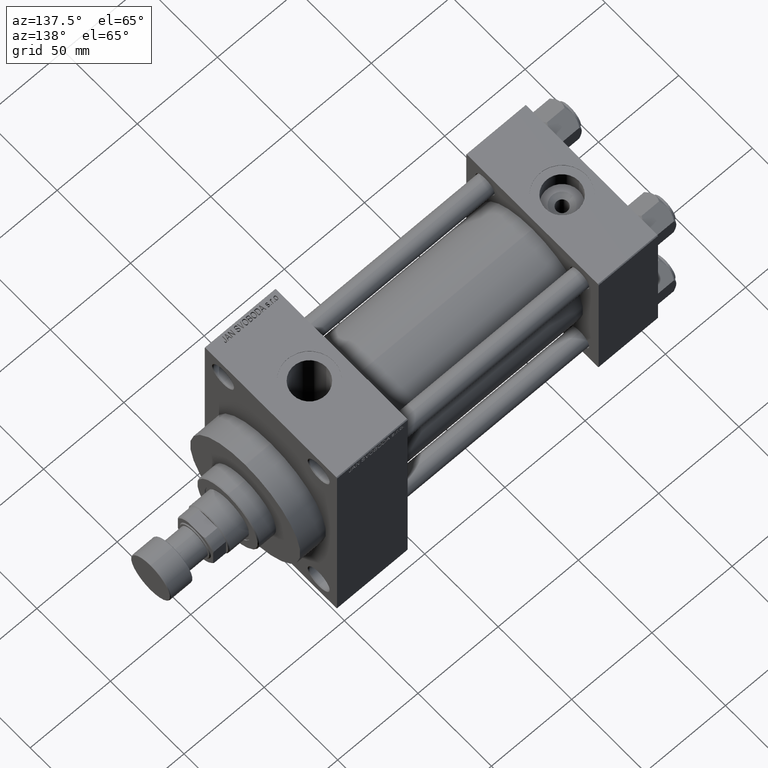
[diagram: clean part render]
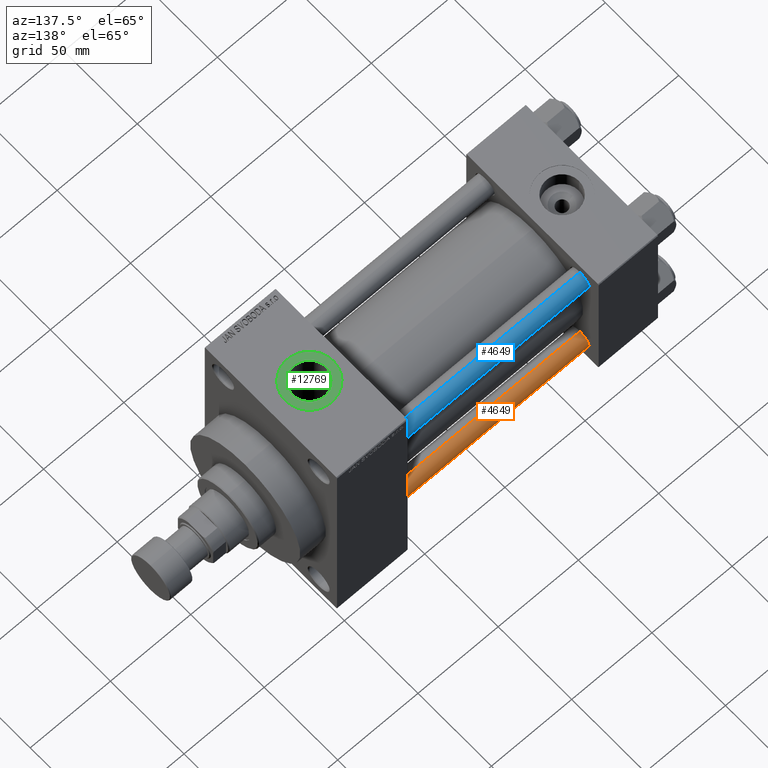
[diagram: same view with three faces highlighted in distinct colors, each labeled with its STEP entity id]
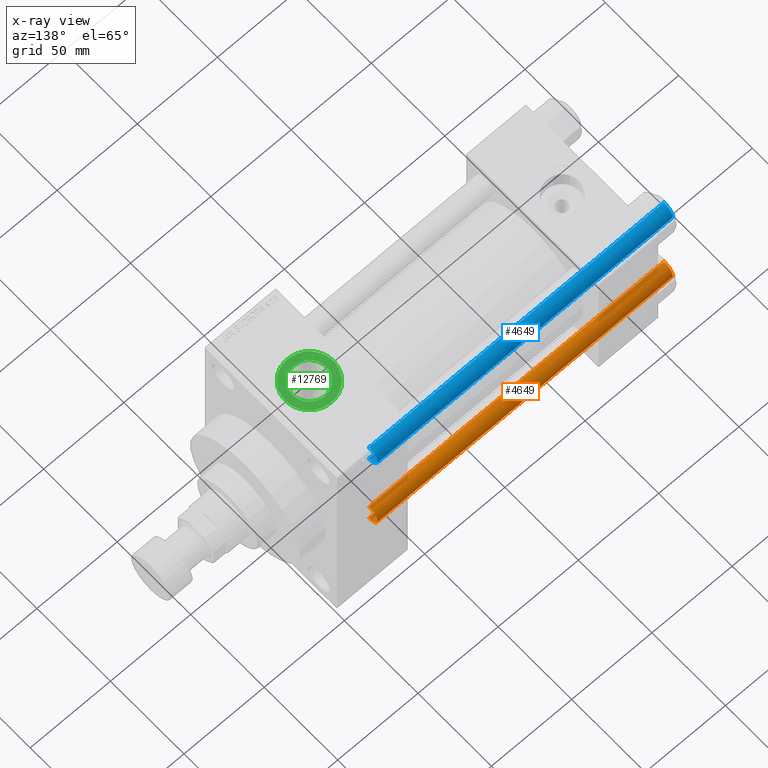
[diagram: x-ray of the same camera — body ghosted, the three highlighted faces saturated]
A machine part, auxiliary view with three faces highlighted in distinct colors.
The next image is the same camera in x-ray (body ghosted, the three faces saturated) — at least one of them is partly hidden behind the body in this view.
Their STEP definitions:

[orange] entity #4649 — the highlighted cylindrical surface (edge-blend (fillet) strip) has radius 6 mm, axis along (-1, -0, 0).
#1362 = ORIENTED_EDGE ( 'NONE', *, *, #16727, .F. ) ;
#1499 = CARTESIAN_POINT ( 'NONE',  ( 6.000000000000000888, 7.347880794884120722E-16, 0.5000000000000281997 ) ) ;
#3550 = AXIS2_PLACEMENT_3D ( 'NONE', #47082, #9959, #18383 ) ;
#3716 = LINE ( 'NONE', #22486, #7372 ) ;
#4130 = DIRECTION ( 'NONE',  ( -0.000000000000000000, -0.000000000000000000, -1.000000000000000000 ) ) ;
#4649 = ADVANCED_FACE ( 'NONE', ( #47544 ), #26056, .T. ) ;
#7236 = CARTESIAN_POINT ( 'NONE',  ( 6.000000000000000888, 7.347880794884120722E-16, 184.5000000000000000 ) ) ;
#7372 = VECTOR ( 'NONE', #19113, 1000.000000000000000 ) ;
#7850 = CARTESIAN_POINT ( 'NONE',  ( -6.000000000000000888, 0.000000000000000000, 184.5000000000000000 ) ) ;
#8520 = VERTEX_POINT ( 'NONE', #1499 ) ;
#9716 = EDGE_CURVE ( 'NONE', #8520, #20925, #18163, .T. ) ;
#9959 = DIRECTION ( 'NONE',  ( -0.000000000000000000, -0.000000000000000000, 1.000000000000000000 ) ) ;
#10884 = DIRECTION ( 'NONE',  ( -1.000000000000000000, 0.000000000000000000, 0.000000000000000000 ) ) ;
#12947 = VECTOR ( 'NONE', #13065, 1000.000000000000000 ) ;
#13065 = DIRECTION ( 'NONE',  ( -0.000000000000000000, -0.000000000000000000, -1.000000000000000000 ) ) ;
#14515 = CARTESIAN_POINT ( 'NONE',  ( 0.000000000000000000, 0.000000000000000000, 185.0000000000000000 ) ) ;
#15023 = VERTEX_POINT ( 'NONE', #7850 ) ;
#15665 = AXIS2_PLACEMENT_3D ( 'NONE', #14515, #4130, #10884 ) ;
#16727 = EDGE_CURVE ( 'NONE', #15023, #20925, #3716, .T. ) ;
#16847 = EDGE_CURVE ( 'NONE', #15023, #37904, #40479, .T. ) ;
#17147 = LINE ( 'NONE', #31851, #12947 ) ;
#18163 = CIRCLE ( 'NONE', #3550, 6.000000000000000888 ) ;
#18383 = DIRECTION ( 'NONE',  ( 1.000000000000000000, 0.000000000000000000, 0.000000000000000000 ) ) ;
#19113 = DIRECTION ( 'NONE',  ( -0.000000000000000000, -0.000000000000000000, -1.000000000000000000 ) ) ;
#19593 = DIRECTION ( 'NONE',  ( 0.000000000000000000, 0.000000000000000000, -1.000000000000000000 ) ) ;
#20031 = ORIENTED_EDGE ( 'NONE', *, *, #9716, .T. ) ;
#20925 = VERTEX_POINT ( 'NONE', #27437 ) ;
#22486 = CARTESIAN_POINT ( 'NONE',  ( -6.000000000000000888, 0.000000000000000000, 185.0000000000000000 ) ) ;
#22814 = AXIS2_PLACEMENT_3D ( 'NONE', #23198, #19593, #41777 ) ;
#23198 = CARTESIAN_POINT ( 'NONE',  ( 0.000000000000000000, 0.000000000000000000, 184.5000000000000000 ) ) ;
#23516 = ORIENTED_EDGE ( 'NONE', *, *, #25005, .T. ) ;
#25005 = EDGE_CURVE ( 'NONE', #37904, #8520, #17147, .T. ) ;
#26056 = CYLINDRICAL_SURFACE ( 'NONE', #15665, 6.000000000000000888 ) ;
#27437 = CARTESIAN_POINT ( 'NONE',  ( -6.000000000000000888, 0.000000000000000000, 0.5000000000000281997 ) ) ;
#31093 = EDGE_LOOP ( 'NONE', ( #44112, #23516, #20031, #1362 ) ) ;
#31851 = CARTESIAN_POINT ( 'NONE',  ( 6.000000000000000888, 7.347880794884120722E-16, 185.0000000000000000 ) ) ;
#37904 = VERTEX_POINT ( 'NONE', #7236 ) ;
#40479 = CIRCLE ( 'NONE', #22814, 6.000000000000000888 ) ;
#41777 = DIRECTION ( 'NONE',  ( 1.000000000000000000, 0.000000000000000000, 0.000000000000000000 ) ) ;
#44112 = ORIENTED_EDGE ( 'NONE', *, *, #16847, .T. ) ;
#47082 = CARTESIAN_POINT ( 'NONE',  ( 0.000000000000000000, 0.000000000000000000, 0.5000000000000281997 ) ) ;
#47544 = FACE_OUTER_BOUND ( 'NONE', #31093, .T. ) ;

[blue] entity #4649 — the highlighted cylindrical surface (edge-blend (fillet) strip) has radius 6 mm, axis along (1, -0, -0).
#1362 = ORIENTED_EDGE ( 'NONE', *, *, #16727, .F. ) ;
#1499 = CARTESIAN_POINT ( 'NONE',  ( 6.000000000000000888, 7.347880794884120722E-16, 0.5000000000000281997 ) ) ;
#3550 = AXIS2_PLACEMENT_3D ( 'NONE', #47082, #9959, #18383 ) ;
#3716 = LINE ( 'NONE', #22486, #7372 ) ;
#4130 = DIRECTION ( 'NONE',  ( -0.000000000000000000, -0.000000000000000000, -1.000000000000000000 ) ) ;
#4649 = ADVANCED_FACE ( 'NONE', ( #47544 ), #26056, .T. ) ;
#7236 = CARTESIAN_POINT ( 'NONE',  ( 6.000000000000000888, 7.347880794884120722E-16, 184.5000000000000000 ) ) ;
#7372 = VECTOR ( 'NONE', #19113, 1000.000000000000000 ) ;
#7850 = CARTESIAN_POINT ( 'NONE',  ( -6.000000000000000888, 0.000000000000000000, 184.5000000000000000 ) ) ;
#8520 = VERTEX_POINT ( 'NONE', #1499 ) ;
#9716 = EDGE_CURVE ( 'NONE', #8520, #20925, #18163, .T. ) ;
#9959 = DIRECTION ( 'NONE',  ( -0.000000000000000000, -0.000000000000000000, 1.000000000000000000 ) ) ;
#10884 = DIRECTION ( 'NONE',  ( -1.000000000000000000, 0.000000000000000000, 0.000000000000000000 ) ) ;
#12947 = VECTOR ( 'NONE', #13065, 1000.000000000000000 ) ;
#13065 = DIRECTION ( 'NONE',  ( -0.000000000000000000, -0.000000000000000000, -1.000000000000000000 ) ) ;
#14515 = CARTESIAN_POINT ( 'NONE',  ( 0.000000000000000000, 0.000000000000000000, 185.0000000000000000 ) ) ;
#15023 = VERTEX_POINT ( 'NONE', #7850 ) ;
#15665 = AXIS2_PLACEMENT_3D ( 'NONE', #14515, #4130, #10884 ) ;
#16727 = EDGE_CURVE ( 'NONE', #15023, #20925, #3716, .T. ) ;
#16847 = EDGE_CURVE ( 'NONE', #15023, #37904, #40479, .T. ) ;
#17147 = LINE ( 'NONE', #31851, #12947 ) ;
#18163 = CIRCLE ( 'NONE', #3550, 6.000000000000000888 ) ;
#18383 = DIRECTION ( 'NONE',  ( 1.000000000000000000, 0.000000000000000000, 0.000000000000000000 ) ) ;
#19113 = DIRECTION ( 'NONE',  ( -0.000000000000000000, -0.000000000000000000, -1.000000000000000000 ) ) ;
#19593 = DIRECTION ( 'NONE',  ( 0.000000000000000000, 0.000000000000000000, -1.000000000000000000 ) ) ;
#20031 = ORIENTED_EDGE ( 'NONE', *, *, #9716, .T. ) ;
#20925 = VERTEX_POINT ( 'NONE', #27437 ) ;
#22486 = CARTESIAN_POINT ( 'NONE',  ( -6.000000000000000888, 0.000000000000000000, 185.0000000000000000 ) ) ;
#22814 = AXIS2_PLACEMENT_3D ( 'NONE', #23198, #19593, #41777 ) ;
#23198 = CARTESIAN_POINT ( 'NONE',  ( 0.000000000000000000, 0.000000000000000000, 184.5000000000000000 ) ) ;
#23516 = ORIENTED_EDGE ( 'NONE', *, *, #25005, .T. ) ;
#25005 = EDGE_CURVE ( 'NONE', #37904, #8520, #17147, .T. ) ;
#26056 = CYLINDRICAL_SURFACE ( 'NONE', #15665, 6.000000000000000888 ) ;
#27437 = CARTESIAN_POINT ( 'NONE',  ( -6.000000000000000888, 0.000000000000000000, 0.5000000000000281997 ) ) ;
#31093 = EDGE_LOOP ( 'NONE', ( #44112, #23516, #20031, #1362 ) ) ;
#31851 = CARTESIAN_POINT ( 'NONE',  ( 6.000000000000000888, 7.347880794884120722E-16, 185.0000000000000000 ) ) ;
#37904 = VERTEX_POINT ( 'NONE', #7236 ) ;
#40479 = CIRCLE ( 'NONE', #22814, 6.000000000000000888 ) ;
#41777 = DIRECTION ( 'NONE',  ( 1.000000000000000000, 0.000000000000000000, 0.000000000000000000 ) ) ;
#44112 = ORIENTED_EDGE ( 'NONE', *, *, #16847, .T. ) ;
#47082 = CARTESIAN_POINT ( 'NONE',  ( 0.000000000000000000, 0.000000000000000000, 0.5000000000000281997 ) ) ;
#47544 = FACE_OUTER_BOUND ( 'NONE', #31093, .T. ) ;

[green] entity #12769 — the highlighted planar face has unit normal (0, 0, 1).
#998 = CIRCLE ( 'NONE', #6405, 10.47999999999998977 ) ;
#1823 = DIRECTION ( 'NONE',  ( 1.000000000000000000, 0.000000000000000000, 0.000000000000000000 ) ) ;
#1865 = CARTESIAN_POINT ( 'NONE',  ( 160.9999999999999716, 1.836970198721034716E-15, 70.79999999999998295 ) ) ;
#2169 = EDGE_CURVE ( 'NONE', #5986, #23370, #5604, .T. ) ;
#2669 = CARTESIAN_POINT ( 'NONE',  ( 176.0000000000000000, 0.000000000000000000, 70.79999999999998295 ) ) ;
#4951 = CARTESIAN_POINT ( 'NONE',  ( 176.0000000000000000, 0.000000000000000000, 70.79999999999998295 ) ) ;
#5604 = CIRCLE ( 'NONE', #46384, 15.00000000000001421 ) ;
#5986 = VERTEX_POINT ( 'NONE', #25324 ) ;
#6405 = AXIS2_PLACEMENT_3D ( 'NONE', #4951, #38462, #1823 ) ;
#9858 = DIRECTION ( 'NONE',  ( 1.000000000000000000, 0.000000000000000000, -0.000000000000000000 ) ) ;
#11751 = CARTESIAN_POINT ( 'NONE',  ( 186.4799999999999898, 1.283429845506424108E-15, 70.79999999999998295 ) ) ;
#12423 = VERTEX_POINT ( 'NONE', #11751 ) ;
#12769 = ADVANCED_FACE ( 'NONE', ( #16855, #42426 ), #41950, .T. ) ;
#14779 = EDGE_LOOP ( 'NONE', ( #41424, #19283 ) ) ;
#16494 = AXIS2_PLACEMENT_3D ( 'NONE', #20242, #42904, #9858 ) ;
#16855 = FACE_BOUND ( 'NONE', #14779, .T. ) ;
#17358 = DIRECTION ( 'NONE',  ( -0.000000000000000000, -0.000000000000000000, -1.000000000000000000 ) ) ;
#18097 = CARTESIAN_POINT ( 'NONE',  ( 165.5200000000000102, 0.000000000000000000, 70.79999999999998295 ) ) ;
#18836 = ORIENTED_EDGE ( 'NONE', *, *, #22061, .T. ) ;
#19283 = ORIENTED_EDGE ( 'NONE', *, *, #43695, .T. ) ;
#20242 = CARTESIAN_POINT ( 'NONE',  ( 176.0000000000000000, 0.000000000000000000, 70.79999999999998295 ) ) ;
#22061 = EDGE_CURVE ( 'NONE', #23370, #5986, #34385, .T. ) ;
#23370 = VERTEX_POINT ( 'NONE', #1865 ) ;
#24511 = DIRECTION ( 'NONE',  ( 1.000000000000000000, 0.000000000000000000, 0.000000000000000000 ) ) ;
#25324 = CARTESIAN_POINT ( 'NONE',  ( 191.0000000000000000, 0.000000000000000000, 70.79999999999998295 ) ) ;
#27549 = VERTEX_POINT ( 'NONE', #18097 ) ;
#31472 = CARTESIAN_POINT ( 'NONE',  ( 176.0000000000000000, 0.000000000000000000, 70.79999999999998295 ) ) ;
#31968 = CARTESIAN_POINT ( 'NONE',  ( 176.0000000000000000, 0.000000000000000000, 70.79999999999998295 ) ) ;
#32057 = DIRECTION ( 'NONE',  ( 1.000000000000000000, 0.000000000000000000, 0.000000000000000000 ) ) ;
#34385 = CIRCLE ( 'NONE', #39802, 15.00000000000001421 ) ;
#34623 = DIRECTION ( 'NONE',  ( 1.000000000000000000, 0.000000000000000000, 0.000000000000000000 ) ) ;
#35302 = EDGE_CURVE ( 'NONE', #27549, #12423, #42403, .T. ) ;
#37628 = ORIENTED_EDGE ( 'NONE', *, *, #2169, .T. ) ;
#38462 = DIRECTION ( 'NONE',  ( -0.000000000000000000, -0.000000000000000000, -1.000000000000000000 ) ) ;
#39691 = DIRECTION ( 'NONE',  ( 0.000000000000000000, 0.000000000000000000, 1.000000000000000000 ) ) ;
#39802 = AXIS2_PLACEMENT_3D ( 'NONE', #31472, #46190, #34623 ) ;
#40861 = AXIS2_PLACEMENT_3D ( 'NONE', #2669, #17358, #32057 ) ;
#41424 = ORIENTED_EDGE ( 'NONE', *, *, #35302, .T. ) ;
#41950 = PLANE ( 'NONE',  #16494 ) ;
#42403 = CIRCLE ( 'NONE', #40861, 10.47999999999998977 ) ;
#42426 = FACE_OUTER_BOUND ( 'NONE', #42873, .T. ) ;
#42873 = EDGE_LOOP ( 'NONE', ( #37628, #18836 ) ) ;
#42904 = DIRECTION ( 'NONE',  ( 0.000000000000000000, 0.000000000000000000, 1.000000000000000000 ) ) ;
#43695 = EDGE_CURVE ( 'NONE', #12423, #27549, #998, .T. ) ;
#46190 = DIRECTION ( 'NONE',  ( 0.000000000000000000, 0.000000000000000000, 1.000000000000000000 ) ) ;
#46384 = AXIS2_PLACEMENT_3D ( 'NONE', #31968, #39691, #24511 ) ;